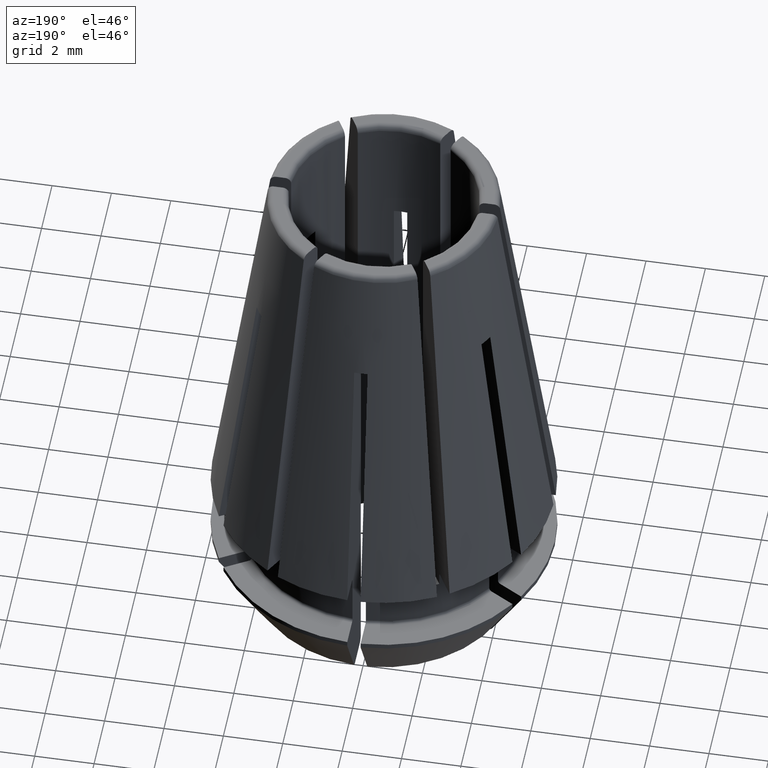
[diagram: clean part render]
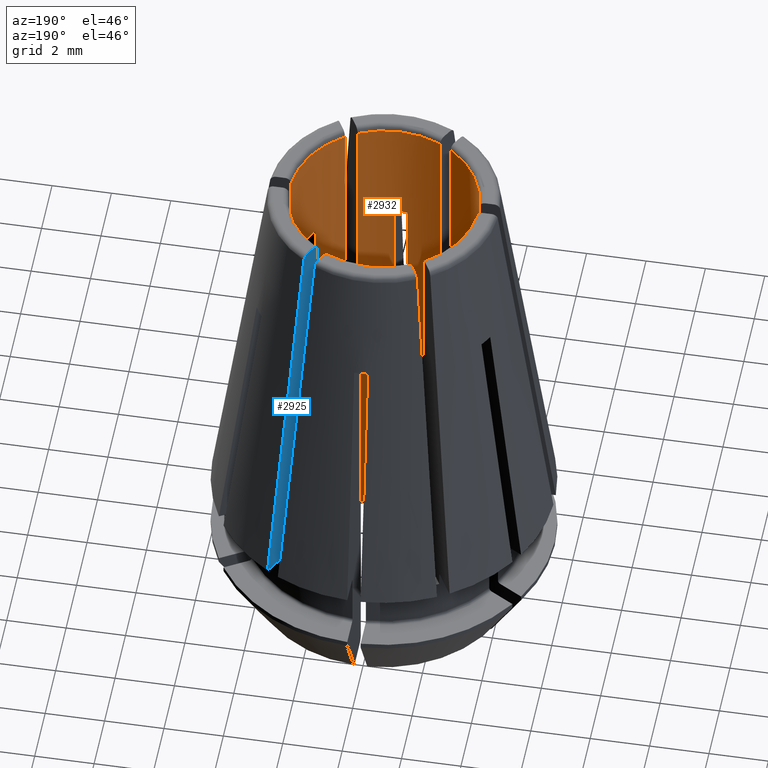
[diagram: same view with the hole feature highlighted: cylindrical wall and planar end face, labeled with their STEP entity ids]
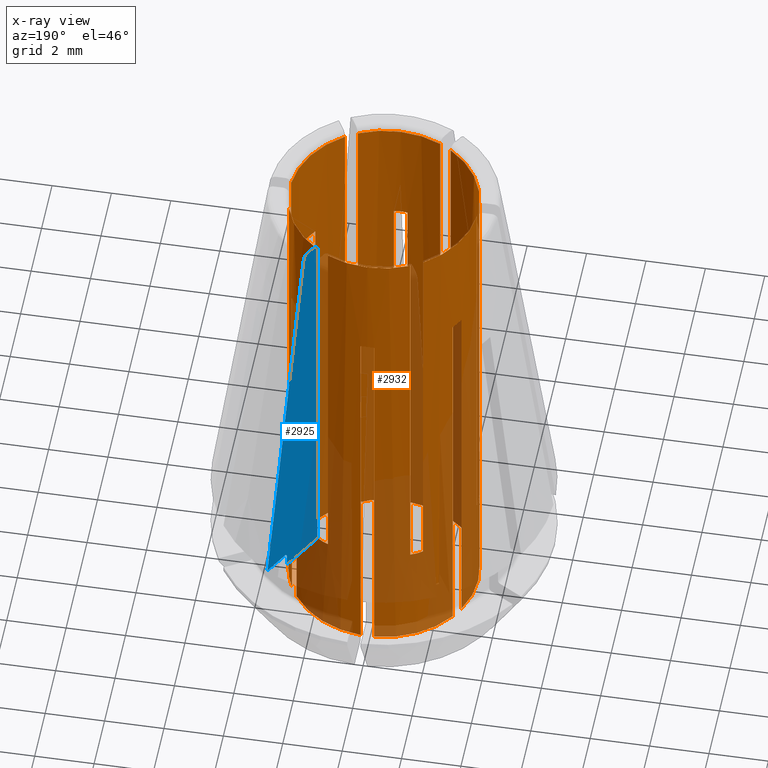
[diagram: x-ray of the same camera — body ghosted, the hole faces saturated]
A machine part, auxiliary view. The highlighted faces form one hole feature of diameter 6.35 mm: the cylindrical wall (entity #2932, orange) and its adjacent planar end face (entity #2925, blue) — they share a circular edge in the B-rep.
The next image is the same camera in x-ray (body ghosted, the hole faces saturated) — the bore reads through the body.
Wall:
#56=CYLINDRICAL_SURFACE('',#3256,3.175);
#84=LINE('',#4397,#252);
#99=LINE('',#4454,#267);
#109=LINE('',#4558,#277);
#120=LINE('',#4625,#288);
#131=LINE('',#4689,#299);
#143=LINE('',#4746,#311);
#170=LINE('',#4964,#338);
#191=LINE('',#5236,#359);
#192=LINE('',#5238,#360);
#195=LINE('',#5250,#363);
#196=LINE('',#5252,#364);
#224=LINE('',#5418,#392);
#225=LINE('',#5420,#393);
#226=LINE('',#5422,#394);
#227=LINE('',#5424,#395);
#228=LINE('',#5426,#396);
#229=LINE('',#5428,#397);
#230=LINE('',#5440,#398);
#231=LINE('',#5442,#399);
#232=LINE('',#5455,#400);
#233=LINE('',#5469,#401);
#234=LINE('',#5472,#402);
#235=LINE('',#5473,#403);
#236=LINE('',#5474,#404);
#252=VECTOR('',#3409,1000.);
#267=VECTOR('',#3450,1000.);
#277=VECTOR('',#3484,1000.);
#288=VECTOR('',#3521,1000.);
#299=VECTOR('',#3558,1000.);
#311=VECTOR('',#3596,1000.);
#338=VECTOR('',#3707,1000.);
#359=VECTOR('',#3844,1000.);
#360=VECTOR('',#3847,1000.);
#363=VECTOR('',#3854,1000.);
#364=VECTOR('',#3857,1000.);
#392=VECTOR('',#4003,1000.);
#393=VECTOR('',#4006,1000.);
#394=VECTOR('',#4009,1000.);
#395=VECTOR('',#4012,1000.);
#396=VECTOR('',#4015,1000.);
#397=VECTOR('',#4018,1000.);
#398=VECTOR('',#4023,1000.);
#399=VECTOR('',#4026,1000.);
#400=VECTOR('',#4029,1000.);
#401=VECTOR('',#4038,1000.);
#402=VECTOR('',#4041,1000.);
#403=VECTOR('',#4042,1000.);
#404=VECTOR('',#4043,1000.);
#473=CIRCLE('',#2959,3.175);
#477=CIRCLE('',#2965,3.175);
#482=CIRCLE('',#2973,3.175);
#485=CIRCLE('',#2978,3.175);
#488=CIRCLE('',#2983,3.175);
#492=CIRCLE('',#2989,3.175);
#495=CIRCLE('',#2994,3.175);
#503=CIRCLE('',#3005,3.175);
#506=CIRCLE('',#3010,3.175);
#544=CIRCLE('',#3088,3.175);
#549=CIRCLE('',#3096,3.175);
#625=CIRCLE('',#3257,3.175);
#1407=ORIENTED_EDGE('',*,*,#1631,.F.);
#1408=ORIENTED_EDGE('',*,*,#1543,.F.);
#1409=ORIENTED_EDGE('',*,*,#1982,.T.);
#1410=ORIENTED_EDGE('',*,*,#1651,.T.);
#1411=ORIENTED_EDGE('',*,*,#1649,.T.);
#1412=ORIENTED_EDGE('',*,*,#1986,.F.);
#1413=ORIENTED_EDGE('',*,*,#1562,.F.);
#1414=ORIENTED_EDGE('',*,*,#1899,.T.);
#1415=ORIENTED_EDGE('',*,*,#1675,.T.);
#1416=ORIENTED_EDGE('',*,*,#1673,.T.);
#1417=ORIENTED_EDGE('',*,*,#1900,.F.);
#1418=ORIENTED_EDGE('',*,*,#1576,.F.);
#1419=ORIENTED_EDGE('',*,*,#1971,.T.);
#1420=ORIENTED_EDGE('',*,*,#1699,.T.);
#1421=ORIENTED_EDGE('',*,*,#1697,.T.);
#1422=ORIENTED_EDGE('',*,*,#1972,.F.);
#1423=ORIENTED_EDGE('',*,*,#1591,.F.);
#1424=ORIENTED_EDGE('',*,*,#1969,.T.);
#1425=ORIENTED_EDGE('',*,*,#1722,.T.);
#1426=ORIENTED_EDGE('',*,*,#1720,.T.);
#1427=ORIENTED_EDGE('',*,*,#1970,.F.);
#1428=ORIENTED_EDGE('',*,*,#1614,.F.);
#1429=ORIENTED_EDGE('',*,*,#1974,.T.);
#1430=ORIENTED_EDGE('',*,*,#1742,.T.);
#1431=ORIENTED_EDGE('',*,*,#1739,.T.);
#1432=ORIENTED_EDGE('',*,*,#1978,.F.);
#1433=ORIENTED_EDGE('',*,*,#1987,.F.);
#1434=ORIENTED_EDGE('',*,*,#1988,.T.);
#1435=ORIENTED_EDGE('',*,*,#1813,.T.);
#1436=ORIENTED_EDGE('',*,*,#1811,.T.);
#1437=ORIENTED_EDGE('',*,*,#1989,.F.);
#1438=ORIENTED_EDGE('',*,*,#1985,.T.);
#1439=ORIENTED_EDGE('',*,*,#1983,.T.);
#1440=ORIENTED_EDGE('',*,*,#1818,.T.);
#1441=ORIENTED_EDGE('',*,*,#1764,.F.);
#1442=ORIENTED_EDGE('',*,*,#1748,.F.);
#1443=ORIENTED_EDGE('',*,*,#1759,.T.);
#1444=ORIENTED_EDGE('',*,*,#1757,.T.);
#1445=ORIENTED_EDGE('',*,*,#1979,.T.);
#1446=ORIENTED_EDGE('',*,*,#1773,.F.);
#1447=ORIENTED_EDGE('',*,*,#1973,.F.);
#1448=ORIENTED_EDGE('',*,*,#1734,.T.);
#1449=ORIENTED_EDGE('',*,*,#1731,.T.);
#1450=ORIENTED_EDGE('',*,*,#1726,.T.);
#1451=ORIENTED_EDGE('',*,*,#1608,.F.);
#1452=ORIENTED_EDGE('',*,*,#1893,.F.);
#1453=ORIENTED_EDGE('',*,*,#1711,.T.);
#1454=ORIENTED_EDGE('',*,*,#1708,.T.);
#1455=ORIENTED_EDGE('',*,*,#1703,.T.);
#1456=ORIENTED_EDGE('',*,*,#1585,.F.);
#1457=ORIENTED_EDGE('',*,*,#1894,.F.);
#1458=ORIENTED_EDGE('',*,*,#1690,.T.);
#1459=ORIENTED_EDGE('',*,*,#1688,.T.);
#1460=ORIENTED_EDGE('',*,*,#1680,.T.);
#1461=ORIENTED_EDGE('',*,*,#1570,.F.);
#1462=ORIENTED_EDGE('',*,*,#1655,.F.);
#1463=ORIENTED_EDGE('',*,*,#1666,.T.);
#1464=ORIENTED_EDGE('',*,*,#1665,.T.);
#1465=ORIENTED_EDGE('',*,*,#1990,.T.);
#1466=ORIENTED_EDGE('',*,*,#1552,.F.);
#1543=EDGE_CURVE('',#1999,#2000,#473,.T.);
#1552=EDGE_CURVE('',#2007,#2008,#477,.T.);
#1562=EDGE_CURVE('',#2017,#2018,#482,.T.);
#1570=EDGE_CURVE('',#2023,#2024,#485,.T.);
#1576=EDGE_CURVE('',#2029,#2030,#488,.T.);
#1585=EDGE_CURVE('',#2037,#2038,#492,.T.);
#1591=EDGE_CURVE('',#2043,#2044,#495,.T.);
#1608=EDGE_CURVE('',#2059,#2060,#503,.T.);
#1614=EDGE_CURVE('',#2065,#2066,#506,.T.);
#1631=EDGE_CURVE('',#2000,#2081,#84,.T.);
#1649=EDGE_CURVE('',#2093,#2096,#2332,.T.);
#1651=EDGE_CURVE('',#2097,#2093,#2333,.T.);
#1655=EDGE_CURVE('',#2101,#2023,#99,.T.);
#1665=EDGE_CURVE('',#2107,#2108,#2337,.T.);
#1666=EDGE_CURVE('',#2101,#2107,#2338,.T.);
#1673=EDGE_CURVE('',#2111,#2114,#2339,.T.);
#1675=EDGE_CURVE('',#2115,#2111,#2340,.T.);
#1680=EDGE_CURVE('',#2120,#2024,#109,.T.);
#1688=EDGE_CURVE('',#2123,#2120,#2344,.T.);
#1690=EDGE_CURVE('',#2126,#2123,#2345,.T.);
#1697=EDGE_CURVE('',#2129,#2132,#2346,.T.);
#1699=EDGE_CURVE('',#2133,#2129,#2347,.T.);
#1703=EDGE_CURVE('',#2136,#2038,#120,.T.);
#1708=EDGE_CURVE('',#2139,#2136,#2350,.T.);
#1711=EDGE_CURVE('',#2141,#2139,#2351,.T.);
#1720=EDGE_CURVE('',#2145,#2148,#2352,.T.);
#1722=EDGE_CURVE('',#2149,#2145,#2353,.T.);
#1726=EDGE_CURVE('',#2152,#2060,#131,.T.);
#1731=EDGE_CURVE('',#2155,#2152,#2356,.T.);
#1734=EDGE_CURVE('',#2157,#2155,#2357,.T.);
#1739=EDGE_CURVE('',#2160,#2161,#2358,.T.);
#1742=EDGE_CURVE('',#2162,#2160,#2359,.T.);
#1748=EDGE_CURVE('',#2167,#2168,#143,.T.);
#1757=EDGE_CURVE('',#2174,#2176,#2364,.T.);
#1759=EDGE_CURVE('',#2167,#2174,#2365,.T.);
#1764=EDGE_CURVE('',#2168,#2179,#544,.T.);
#1773=EDGE_CURVE('',#2187,#2188,#549,.T.);
#1811=EDGE_CURVE('',#2083,#2081,#2373,.T.);
#1813=EDGE_CURVE('',#2214,#2083,#2374,.T.);
#1818=EDGE_CURVE('',#2218,#2179,#170,.T.);
#1893=EDGE_CURVE('',#2141,#2059,#191,.T.);
#1894=EDGE_CURVE('',#2126,#2037,#192,.T.);
#1899=EDGE_CURVE('',#2017,#2115,#195,.T.);
#1900=EDGE_CURVE('',#2030,#2114,#196,.T.);
#1969=EDGE_CURVE('',#2043,#2149,#224,.T.);
#1970=EDGE_CURVE('',#2066,#2148,#225,.T.);
#1971=EDGE_CURVE('',#2029,#2133,#226,.T.);
#1972=EDGE_CURVE('',#2044,#2132,#227,.T.);
#1973=EDGE_CURVE('',#2157,#2187,#228,.T.);
#1974=EDGE_CURVE('',#2065,#2162,#229,.T.);
#1978=EDGE_CURVE('',#2292,#2161,#230,.T.);
#1979=EDGE_CURVE('',#2176,#2188,#231,.T.);
#1982=EDGE_CURVE('',#1999,#2097,#232,.T.);
#1983=EDGE_CURVE('',#2088,#2218,#2422,.T.);
#1985=EDGE_CURVE('',#2293,#2088,#2423,.T.);
#1986=EDGE_CURVE('',#2018,#2096,#233,.T.);
#1987=EDGE_CURVE('',#2294,#2292,#625,.T.);
#1988=EDGE_CURVE('',#2294,#2214,#234,.T.);
#1989=EDGE_CURVE('',#2293,#2007,#235,.T.);
#1990=EDGE_CURVE('',#2108,#2008,#236,.T.);
#1999=VERTEX_POINT('',#4082);
#2000=VERTEX_POINT('',#4083);
#2007=VERTEX_POINT('',#4109);
#2008=VERTEX_POINT('',#4111);
#2017=VERTEX_POINT('',#4142);
#2018=VERTEX_POINT('',#4143);
#2023=VERTEX_POINT('',#4166);
#2024=VERTEX_POINT('',#4168);
#2029=VERTEX_POINT('',#4190);
#2030=VERTEX_POINT('',#4191);
#2037=VERTEX_POINT('',#4217);
#2038=VERTEX_POINT('',#4219);
#2043=VERTEX_POINT('',#4241);
#2044=VERTEX_POINT('',#4242);
#2059=VERTEX_POINT('',#4315);
#2060=VERTEX_POINT('',#4317);
#2065=VERTEX_POINT('',#4339);
#2066=VERTEX_POINT('',#4340);
#2081=VERTEX_POINT('',#4398);
#2083=VERTEX_POINT('',#4404);
#2088=VERTEX_POINT('',#4415);
#2093=VERTEX_POINT('',#4426);
#2096=VERTEX_POINT('',#4434);
#2097=VERTEX_POINT('',#4441);
#2101=VERTEX_POINT('',#4453);
#2107=VERTEX_POINT('',#4479);
#2108=VERTEX_POINT('',#4484);
#2111=VERTEX_POINT('',#4499);
#2114=VERTEX_POINT('',#4507);
#2115=VERTEX_POINT('',#4514);
#2120=VERTEX_POINT('',#4559);
#2123=VERTEX_POINT('',#4567);
#2126=VERTEX_POINT('',#4580);
#2129=VERTEX_POINT('',#4590);
#2132=VERTEX_POINT('',#4598);
#2133=VERTEX_POINT('',#4605);
#2136=VERTEX_POINT('',#4626);
#2139=VERTEX_POINT('',#4634);
#2141=VERTEX_POINT('',#4642);
#2145=VERTEX_POINT('',#4657);
#2148=VERTEX_POINT('',#4665);
#2149=VERTEX_POINT('',#4672);
#2152=VERTEX_POINT('',#4690);
#2155=VERTEX_POINT('',#4698);
#2157=VERTEX_POINT('',#4706);
#2160=VERTEX_POINT('',#4719);
#2161=VERTEX_POINT('',#4721);
#2162=VERTEX_POINT('',#4728);
#2167=VERTEX_POINT('',#4745);
#2168=VERTEX_POINT('',#4747);
#2174=VERTEX_POINT('',#4779);
#2176=VERTEX_POINT('',#4782);
#2179=VERTEX_POINT('',#4803);
#2187=VERTEX_POINT('',#4827);
#2188=VERTEX_POINT('',#4829);
#2214=VERTEX_POINT('',#4939);
#2218=VERTEX_POINT('',#4965);
#2292=VERTEX_POINT('',#5439);
#2293=VERTEX_POINT('',#5463);
#2294=VERTEX_POINT('',#5471);
#2332=B_SPLINE_CURVE_WITH_KNOTS('',3,(#4435,#4436,#4437,#4438),
 .UNSPECIFIED.,.F.,.F.,(4,4),(0.000225,0.000449999999999999),
 .UNSPECIFIED.);
#2333=B_SPLINE_CURVE_WITH_KNOTS('',3,(#4442,#4443,#4444,#4445),
 .UNSPECIFIED.,.F.,.F.,(4,4),(9.69739903612216E-19,0.000225),
 .UNSPECIFIED.);
#2337=B_SPLINE_CURVE_WITH_KNOTS('',3,(#4485,#4486,#4487,#4488),
 .UNSPECIFIED.,.F.,.F.,(4,4),(0.000224999999999997,0.000449999999999999),
 .UNSPECIFIED.);
#2338=B_SPLINE_CURVE_WITH_KNOTS('',3,(#4490,#4491,#4492,#4493),
 .UNSPECIFIED.,.F.,.F.,(4,4),(1.93947980722443E-18,0.000224999999999997),
 .UNSPECIFIED.);
#2339=B_SPLINE_CURVE_WITH_KNOTS('',3,(#4508,#4509,#4510,#4511),
 .UNSPECIFIED.,.F.,.F.,(4,4),(0.000225000000000008,0.000450000000000001),
 .UNSPECIFIED.);
#2340=B_SPLINE_CURVE_WITH_KNOTS('',3,(#4515,#4516,#4517,#4518),
 .UNSPECIFIED.,.F.,.F.,(4,4),(0.,0.000225000000000008),.UNSPECIFIED.);
#2344=B_SPLINE_CURVE_WITH_KNOTS('',3,(#4574,#4575,#4576,#4577),
 .UNSPECIFIED.,.F.,.F.,(4,4),(0.000225,0.00045),.UNSPECIFIED.);
#2345=B_SPLINE_CURVE_WITH_KNOTS('',3,(#4581,#4582,#4583,#4584),
 .UNSPECIFIED.,.F.,.F.,(4,4),(0.,0.000225),.UNSPECIFIED.);
#2346=B_SPLINE_CURVE_WITH_KNOTS('',3,(#4599,#4600,#4601,#4602),
 .UNSPECIFIED.,.F.,.F.,(4,4),(0.000225000000000008,0.000449999999999998),
 .UNSPECIFIED.);
#2347=B_SPLINE_CURVE_WITH_KNOTS('',3,(#4606,#4607,#4608,#4609),
 .UNSPECIFIED.,.F.,.F.,(4,4),(0.,0.000225000000000008),.UNSPECIFIED.);
#2350=B_SPLINE_CURVE_WITH_KNOTS('',3,(#4635,#4636,#4637,#4638),
 .UNSPECIFIED.,.F.,.F.,(4,4),(0.000225000000000002,0.000450000000000001),
 .UNSPECIFIED.);
#2351=B_SPLINE_CURVE_WITH_KNOTS('',3,(#4644,#4645,#4646,#4647),
 .UNSPECIFIED.,.F.,.F.,(4,4),(0.,0.000225000000000002),.UNSPECIFIED.);
#2352=B_SPLINE_CURVE_WITH_KNOTS('',3,(#4666,#4667,#4668,#4669),
 .UNSPECIFIED.,.F.,.F.,(4,4),(0.000225000000000002,0.000449999999999998),
 .UNSPECIFIED.);
#2353=B_SPLINE_CURVE_WITH_KNOTS('',3,(#4673,#4674,#4675,#4676),
 .UNSPECIFIED.,.F.,.F.,(4,4),(2.5287722848199E-18,0.000225000000000002),
 .UNSPECIFIED.);
#2356=B_SPLINE_CURVE_WITH_KNOTS('',3,(#4699,#4700,#4701,#4702),
 .UNSPECIFIED.,.F.,.F.,(4,4),(0.000225000000000005,0.000450000000000001),
 .UNSPECIFIED.);
#2357=B_SPLINE_CURVE_WITH_KNOTS('',3,(#4708,#4709,#4710,#4711),
 .UNSPECIFIED.,.F.,.F.,(4,4),(0.,0.000225000000000005),.UNSPECIFIED.);
#2358=B_SPLINE_CURVE_WITH_KNOTS('',3,(#4722,#4723,#4724,#4725),
 .UNSPECIFIED.,.F.,.F.,(4,4),(0.000225,0.00045),.UNSPECIFIED.);
#2359=B_SPLINE_CURVE_WITH_KNOTS('',3,(#4731,#4732,#4733,#4734),
 .UNSPECIFIED.,.F.,.F.,(4,4),(0.,0.000225),.UNSPECIFIED.);
#2364=B_SPLINE_CURVE_WITH_KNOTS('',3,(#4783,#4784,#4785,#4786),
 .UNSPECIFIED.,.F.,.F.,(4,4),(0.000225,0.00045),.UNSPECIFIED.);
#2365=B_SPLINE_CURVE_WITH_KNOTS('',3,(#4789,#4790,#4791,#4792),
 .UNSPECIFIED.,.F.,.F.,(4,4),(0.,0.000225),.UNSPECIFIED.);
#2373=B_SPLINE_CURVE_WITH_KNOTS('',3,(#4933,#4934,#4935,#4936),
 .UNSPECIFIED.,.F.,.F.,(4,4),(0.000225000000000006,0.000450000000000001),
 .UNSPECIFIED.);
#2374=B_SPLINE_CURVE_WITH_KNOTS('',3,(#4940,#4941,#4942,#4943),
 .UNSPECIFIED.,.F.,.F.,(4,4),(2.5287722848199E-18,0.000225000000000006),
 .UNSPECIFIED.);
#2422=B_SPLINE_CURVE_WITH_KNOTS('',3,(#5457,#5458,#5459,#5460),
 .UNSPECIFIED.,.F.,.F.,(4,4),(0.000225000000000001,0.00045),
 .UNSPECIFIED.);
#2423=B_SPLINE_CURVE_WITH_KNOTS('',3,(#5464,#5465,#5466,#5467),
 .UNSPECIFIED.,.F.,.F.,(4,4),(7.81829305173188E-19,0.000225000000000001),
 .UNSPECIFIED.);
#2574=EDGE_LOOP('',(#1407,#1408,#1409,#1410,#1411,#1412,#1413,#1414,#1415,
#1416,#1417,#1418,#1419,#1420,#1421,#1422,#1423,#1424,#1425,#1426,#1427,
#1428,#1429,#1430,#1431,#1432,#1433,#1434,#1435,#1436));
#2575=EDGE_LOOP('',(#1437,#1438,#1439,#1440,#1441,#1442,#1443,#1444,#1445,
#1446,#1447,#1448,#1449,#1450,#1451,#1452,#1453,#1454,#1455,#1456,#1457,
#1458,#1459,#1460,#1461,#1462,#1463,#1464,#1465,#1466));
#2732=FACE_BOUND('',#2574,.T.);
#2733=FACE_BOUND('',#2575,.T.);
#2932=ADVANCED_FACE('',(#2732,#2733),#56,.F.);
#2959=AXIS2_PLACEMENT_3D('',#4081,#3278,#3279);
#2965=AXIS2_PLACEMENT_3D('',#4110,#3292,#3293);
#2973=AXIS2_PLACEMENT_3D('',#4141,#3310,#3311);
#2978=AXIS2_PLACEMENT_3D('',#4167,#3322,#3323);
#2983=AXIS2_PLACEMENT_3D('',#4189,#3332,#3333);
#2989=AXIS2_PLACEMENT_3D('',#4218,#3346,#3347);
#2994=AXIS2_PLACEMENT_3D('',#4240,#3356,#3357);
#3005=AXIS2_PLACEMENT_3D('',#4316,#3380,#3381);
#3010=AXIS2_PLACEMENT_3D('',#4338,#3390,#3391);
#3088=AXIS2_PLACEMENT_3D('',#4805,#3616,#3617);
#3096=AXIS2_PLACEMENT_3D('',#4828,#3635,#3636);
#3256=AXIS2_PLACEMENT_3D('',#5468,#4036,#4037);
#3257=AXIS2_PLACEMENT_3D('',#5470,#4039,#4040);
#3278=DIRECTION('',(0.,0.,1.));
#3279=DIRECTION('',(1.,0.,0.));
#3292=DIRECTION('',(0.,0.,-1.));
#3293=DIRECTION('',(-1.,0.,0.));
#3310=DIRECTION('',(0.,0.,1.));
#3311=DIRECTION('',(1.,0.,0.));
#3322=DIRECTION('',(0.,0.,-1.));
#3323=DIRECTION('',(-1.,0.,0.));
#3332=DIRECTION('',(0.,0.,1.));
#3333=DIRECTION('',(1.,0.,0.));
#3346=DIRECTION('',(0.,0.,-1.));
#3347=DIRECTION('',(-1.,0.,0.));
#3356=DIRECTION('',(0.,0.,1.));
#3357=DIRECTION('',(1.,0.,0.));
#3380=DIRECTION('',(0.,0.,-1.));
#3381=DIRECTION('',(-1.,0.,0.));
#3390=DIRECTION('',(0.,0.,1.));
#3391=DIRECTION('',(1.,0.,0.));
#3409=DIRECTION('',(0.,0.,1.));
#3450=DIRECTION('',(0.,0.,1.));
#3484=DIRECTION('',(0.,0.,1.));
#3521=DIRECTION('',(0.,0.,1.));
#3558=DIRECTION('',(0.,0.,1.));
#3596=DIRECTION('',(0.,0.,1.));
#3616=DIRECTION('',(0.,0.,-1.));
#3617=DIRECTION('',(-1.,0.,0.));
#3635=DIRECTION('',(0.,0.,-1.));
#3636=DIRECTION('',(-1.,0.,0.));
#3707=DIRECTION('',(0.,0.,1.));
#3844=DIRECTION('',(0.,0.,1.));
#3847=DIRECTION('',(0.,0.,1.));
#3854=DIRECTION('',(0.,0.,1.));
#3857=DIRECTION('',(0.,0.,1.));
#4003=DIRECTION('',(0.,0.,1.));
#4006=DIRECTION('',(0.,0.,1.));
#4009=DIRECTION('',(0.,0.,1.));
#4012=DIRECTION('',(0.,0.,1.));
#4015=DIRECTION('',(0.,0.,1.));
#4018=DIRECTION('',(0.,0.,1.));
#4023=DIRECTION('',(0.,0.,1.));
#4026=DIRECTION('',(0.,0.,1.));
#4029=DIRECTION('',(0.,0.,1.));
#4036=DIRECTION('',(0.,0.,-1.));
#4037=DIRECTION('',(1.,0.,0.));
#4038=DIRECTION('',(0.,0.,1.));
#4039=DIRECTION('',(0.,0.,1.));
#4040=DIRECTION('',(1.,0.,0.));
#4041=DIRECTION('',(0.,0.,1.));
#4042=DIRECTION('',(0.,0.,1.));
#4043=DIRECTION('',(0.,0.,1.));
#4081=CARTESIAN_POINT('',(0.,0.,-4.3));
#4082=CARTESIAN_POINT('',(2.8552176303805,-1.3886530463598,-4.3));
#4083=CARTESIAN_POINT('',(2.8552176303805,1.38865304635981,-4.3));
#4109=CARTESIAN_POINT('',(1.3886530463596,-2.85521763038014,13.3000000000001));
#4110=CARTESIAN_POINT('',(0.,0.,13.3));
#4111=CARTESIAN_POINT('',(-1.3886530463598,-2.8552176303805,13.3));
#4141=CARTESIAN_POINT('',(0.,0.,-4.3));
#4142=CARTESIAN_POINT('',(0.225000000000008,-3.16701752442262,-4.3));
#4143=CARTESIAN_POINT('',(2.6302176303805,-1.7783644780628,-4.3));
#4166=CARTESIAN_POINT('',(-1.77836447806258,-2.63021763038015,13.3000000000001));
#4167=CARTESIAN_POINT('',(0.,0.,13.3));
#4168=CARTESIAN_POINT('',(-3.16701752442221,-0.224999999999997,13.3000000000001));
#4189=CARTESIAN_POINT('',(0.,0.,-4.3));
#4190=CARTESIAN_POINT('',(-2.6302176303805,-1.7783644780628,-4.3));
#4191=CARTESIAN_POINT('',(-0.224999999999992,-3.16701752442262,-4.3));
#4217=CARTESIAN_POINT('',(-3.16701752442221,0.225000000000003,13.3000000000001));
#4218=CARTESIAN_POINT('',(0.,0.,13.3));
#4219=CARTESIAN_POINT('',(-1.77836447806258,2.63021763038015,13.3000000000001));
#4240=CARTESIAN_POINT('',(0.,0.,-4.3));
#4241=CARTESIAN_POINT('',(-2.8552176303805,1.38865304635981,-4.3));
#4242=CARTESIAN_POINT('',(-2.8552176303805,-1.38865304635981,-4.3));
#4315=CARTESIAN_POINT('',(-1.38865304635959,2.85521763038015,13.3000000000001));
#4316=CARTESIAN_POINT('',(0.,0.,13.3));
#4317=CARTESIAN_POINT('',(1.3886530463596,2.85521763038014,13.3000000000001));
#4338=CARTESIAN_POINT('',(0.,0.,-4.3));
#4339=CARTESIAN_POINT('',(-0.225,3.16701752442262,-4.3));
#4340=CARTESIAN_POINT('',(-2.63021763038049,1.77836447806281,-4.3));
#4397=CARTESIAN_POINT('',(2.8552176303805,1.38865304635981,60.));
#4398=CARTESIAN_POINT('',(2.8552176303805,1.38865304635981,9.49105362531695));
#4404=CARTESIAN_POINT('',(2.7496306570156,1.5875,9.5));
#4415=CARTESIAN_POINT('',(1.5875,-2.74963065701559,-0.5));
#4426=CARTESIAN_POINT('',(2.7496306570156,-1.5875,9.5));
#4434=CARTESIAN_POINT('',(2.63021763038049,-1.77836447806281,9.49105362531695));
#4435=CARTESIAN_POINT('',(2.74963065701559,-1.5875,9.50000000000026));
#4436=CARTESIAN_POINT('',(2.71213065701559,-1.65245190528383,9.50000000000026));
#4437=CARTESIAN_POINT('',(2.67233212290419,-1.7160767512797,9.49702827499802));
#4438=CARTESIAN_POINT('',(2.63021763038049,-1.77836447806281,9.49105362531694));
#4441=CARTESIAN_POINT('',(2.8552176303805,-1.38865304635981,9.49105362531695));
#4442=CARTESIAN_POINT('',(2.85521763038049,-1.38865304635981,9.49105362531693));
#4443=CARTESIAN_POINT('',(2.82233212290419,-1.45626913014437,9.49702827499802));
#4444=CARTESIAN_POINT('',(2.78713065701559,-1.52254809471616,9.50000000000026));
#4445=CARTESIAN_POINT('',(2.74963065701559,-1.5875,9.50000000000026));
#4453=CARTESIAN_POINT('',(-1.77836447806281,-2.63021763038049,-0.48570068475687));
#4454=CARTESIAN_POINT('',(-1.77836447806281,-2.63021763038049,60.));
#4479=CARTESIAN_POINT('',(-1.5875,-2.74963065701558,-0.5));
#4484=CARTESIAN_POINT('',(-1.38865304635981,-2.85521763038049,-0.48570068475687));
#4485=CARTESIAN_POINT('',(-1.5875,-2.74963065701559,-0.500000000000026));
#4486=CARTESIAN_POINT('',(-1.52254809471617,-2.78713065701559,-0.500000000000026));
#4487=CARTESIAN_POINT('',(-1.45626913014438,-2.82233212290419,-0.495252925073164));
#4488=CARTESIAN_POINT('',(-1.38865304635981,-2.8552176303805,-0.485700684756869));
#4490=CARTESIAN_POINT('',(-1.77836447806281,-2.63021763038049,-0.485700684756859));
#4491=CARTESIAN_POINT('',(-1.7160767512797,-2.67233212290418,-0.495252925073153));
#4492=CARTESIAN_POINT('',(-1.65245190528383,-2.71213065701559,-0.500000000000026));
#4493=CARTESIAN_POINT('',(-1.5875,-2.74963065701559,-0.500000000000026));
#4499=CARTESIAN_POINT('',(3.79470760369927E-16,-3.175,9.5));
#4507=CARTESIAN_POINT('',(-0.224999999999992,-3.16701752442262,9.49105362531696));
#4508=CARTESIAN_POINT('',(4.06575814682064E-16,-3.175,9.50000000000029));
#4509=CARTESIAN_POINT('',(-0.0749999999999972,-3.175,9.50000000000029));
#4510=CARTESIAN_POINT('',(-0.149999999999995,-3.17234588142408,9.49702827499804));
#4511=CARTESIAN_POINT('',(-0.224999999999993,-3.16701752442262,9.49105362531695));
#4514=CARTESIAN_POINT('',(0.225000000000008,-3.16701752442262,9.49105362531695));
#4515=CARTESIAN_POINT('',(0.225000000000008,-3.16701752442262,9.49105362531695));
#4516=CARTESIAN_POINT('',(0.150000000000005,-3.17234588142408,9.49702827499804));
#4517=CARTESIAN_POINT('',(0.0750000000000029,-3.175,9.50000000000029));
#4518=CARTESIAN_POINT('',(4.06575814682064E-16,-3.175,9.50000000000029));
#4558=CARTESIAN_POINT('',(-3.16701752442262,-0.225,60.));
#4559=CARTESIAN_POINT('',(-3.16701752442262,-0.225,-0.485700684756884));
#4567=CARTESIAN_POINT('',(-3.175,-3.79470760369927E-16,-0.5));
#4574=CARTESIAN_POINT('',(-3.175,-3.79220752594055E-16,-0.500000000000008));
#4575=CARTESIAN_POINT('',(-3.175,-0.0750000000000003,-0.500000000000008));
#4576=CARTESIAN_POINT('',(-3.17234588142408,-0.15,-0.495252925073173));
#4577=CARTESIAN_POINT('',(-3.16701752442262,-0.225,-0.485700684756878));
#4580=CARTESIAN_POINT('',(-3.16701752442262,0.225,-0.485700684756884));
#4581=CARTESIAN_POINT('',(-3.16701752442262,0.225,-0.485700684756884));
#4582=CARTESIAN_POINT('',(-3.17234588142408,0.15,-0.495252925073179));
#4583=CARTESIAN_POINT('',(-3.175,0.0749999999999997,-0.500000000000008));
#4584=CARTESIAN_POINT('',(-3.175,-3.79220752594055E-16,-0.500000000000008));
#4590=CARTESIAN_POINT('',(-2.7496306570156,-1.5875,9.5));
#4598=CARTESIAN_POINT('',(-2.85521763038049,-1.38865304635982,9.49105362531696));
#4599=CARTESIAN_POINT('',(-2.74963065701559,-1.5875,9.50000000000031));
#4600=CARTESIAN_POINT('',(-2.78713065701559,-1.52254809471617,9.50000000000031));
#4601=CARTESIAN_POINT('',(-2.82233212290419,-1.45626913014438,9.49702827499805));
#4602=CARTESIAN_POINT('',(-2.8552176303805,-1.38865304635982,9.49105362531696));
#4605=CARTESIAN_POINT('',(-2.63021763038049,-1.77836447806281,9.49105362531696));
#4606=CARTESIAN_POINT('',(-2.63021763038049,-1.77836447806281,9.49105362531696));
#4607=CARTESIAN_POINT('',(-2.67233212290419,-1.71607675127971,9.49702827499805));
#4608=CARTESIAN_POINT('',(-2.71213065701559,-1.65245190528383,9.50000000000031));
#4609=CARTESIAN_POINT('',(-2.74963065701559,-1.5875,9.50000000000031));
#4625=CARTESIAN_POINT('',(-1.77836447806281,2.63021763038049,60.));
#4626=CARTESIAN_POINT('',(-1.77836447806281,2.63021763038049,-0.485700684756884));
#4634=CARTESIAN_POINT('',(-1.5875,2.74963065701559,-0.5));
#4635=CARTESIAN_POINT('',(-1.5875,2.74963065701559,-0.500000000000037));
#4636=CARTESIAN_POINT('',(-1.65245190528383,2.71213065701559,-0.500000000000037));
#4637=CARTESIAN_POINT('',(-1.71607675127971,2.67233212290419,-0.495252925073179));
#4638=CARTESIAN_POINT('',(-1.77836447806281,2.63021763038049,-0.485700684756885));
#4642=CARTESIAN_POINT('',(-1.38865304635981,2.8552176303805,-0.485700684756884));
#4644=CARTESIAN_POINT('',(-1.38865304635981,2.8552176303805,-0.485700684756884));
#4645=CARTESIAN_POINT('',(-1.45626913014437,2.82233212290419,-0.495252925073179));
#4646=CARTESIAN_POINT('',(-1.52254809471617,2.78713065701559,-0.500000000000037));
#4647=CARTESIAN_POINT('',(-1.5875,2.74963065701559,-0.500000000000037));
#4657=CARTESIAN_POINT('',(-2.74963065701559,1.5875,9.5));
#4665=CARTESIAN_POINT('',(-2.6302176303805,1.77836447806281,9.49105362531696));
#4666=CARTESIAN_POINT('',(-2.74963065701559,1.5875,9.5000000000003));
#4667=CARTESIAN_POINT('',(-2.71213065701559,1.65245190528383,9.5000000000003));
#4668=CARTESIAN_POINT('',(-2.67233212290419,1.71607675127971,9.49702827499805));
#4669=CARTESIAN_POINT('',(-2.63021763038049,1.77836447806281,9.49105362531696));
#4672=CARTESIAN_POINT('',(-2.8552176303805,1.38865304635981,9.49105362531696));
#4673=CARTESIAN_POINT('',(-2.8552176303805,1.38865304635981,9.49105362531696));
#4674=CARTESIAN_POINT('',(-2.82233212290419,1.45626913014437,9.49702827499805));
#4675=CARTESIAN_POINT('',(-2.78713065701559,1.52254809471617,9.5000000000003));
#4676=CARTESIAN_POINT('',(-2.74963065701559,1.5875,9.5000000000003));
#4689=CARTESIAN_POINT('',(1.38865304635982,2.8552176303805,60.));
#4690=CARTESIAN_POINT('',(1.38865304635982,2.8552176303805,-0.48570068475687));
#4698=CARTESIAN_POINT('',(1.5875,2.7496306570156,-0.5));
#4699=CARTESIAN_POINT('',(1.5875,2.74963065701559,-0.500000000000031));
#4700=CARTESIAN_POINT('',(1.52254809471617,2.78713065701559,-0.500000000000031));
#4701=CARTESIAN_POINT('',(1.45626913014437,2.82233212290419,-0.495252925073158));
#4702=CARTESIAN_POINT('',(1.38865304635981,2.8552176303805,-0.485700684756864));
#4706=CARTESIAN_POINT('',(1.77836447806281,2.63021763038049,-0.48570068475687));
#4708=CARTESIAN_POINT('',(1.77836447806281,2.63021763038049,-0.48570068475687));
#4709=CARTESIAN_POINT('',(1.71607675127971,2.67233212290419,-0.495252925073165));
#4710=CARTESIAN_POINT('',(1.65245190528383,2.71213065701559,-0.500000000000031));
#4711=CARTESIAN_POINT('',(1.5875,2.74963065701559,-0.500000000000031));
#4719=CARTESIAN_POINT('',(0.,3.175,9.5));
#4721=CARTESIAN_POINT('',(0.225,3.16701752442262,9.49105362531696));
#4722=CARTESIAN_POINT('',(1.71911023224804E-17,3.175,9.50000000000029));
#4723=CARTESIAN_POINT('',(0.0750000000000001,3.175,9.50000000000029));
#4724=CARTESIAN_POINT('',(0.15,3.17234588142408,9.49702827499804));
#4725=CARTESIAN_POINT('',(0.225,3.16701752442262,9.49105362531695));
#4728=CARTESIAN_POINT('',(-0.225,3.16701752442262,9.49105362531696));
#4731=CARTESIAN_POINT('',(-0.225,3.16701752442262,9.49105362531696));
#4732=CARTESIAN_POINT('',(-0.15,3.17234588142408,9.49702827499805));
#4733=CARTESIAN_POINT('',(-0.0749999999999999,3.175,9.50000000000029));
#4734=CARTESIAN_POINT('',(1.71911023224804E-17,3.175,9.50000000000029));
#4745=CARTESIAN_POINT('',(3.16701752442262,-0.225,-0.48570068475687));
#4746=CARTESIAN_POINT('',(3.16701752442262,-0.225,60.));
#4747=CARTESIAN_POINT('',(3.16701752442262,-0.225,13.2999999999984));
#4779=CARTESIAN_POINT('',(3.175,0.,-0.5));
#4782=CARTESIAN_POINT('',(3.16701752442262,0.225,-0.48570068475687));
#4783=CARTESIAN_POINT('',(3.175,2.68550465364552E-17,-0.500000000000008));
#4784=CARTESIAN_POINT('',(3.175,0.0750000000000001,-0.500000000000008));
#4785=CARTESIAN_POINT('',(3.17234588142408,0.15,-0.495252925073159));
#4786=CARTESIAN_POINT('',(3.16701752442262,0.225,-0.485700684756864));
#4789=CARTESIAN_POINT('',(3.16701752442262,-0.225,-0.48570068475687));
#4790=CARTESIAN_POINT('',(3.17234588142408,-0.15,-0.495252925073165));
#4791=CARTESIAN_POINT('',(3.175,-0.0749999999999999,-0.500000000000008));
#4792=CARTESIAN_POINT('',(3.175,2.68550465364552E-17,-0.500000000000008));
#4803=CARTESIAN_POINT('',(1.77836447806259,-2.63021763038014,13.3000000000001));
#4805=CARTESIAN_POINT('',(0.,0.,13.3));
#4827=CARTESIAN_POINT('',(1.77836447806259,2.63021763038014,13.3000000000001));
#4828=CARTESIAN_POINT('',(0.,0.,13.3));
#4829=CARTESIAN_POINT('',(3.16701752442262,0.225,13.2999999999984));
#4933=CARTESIAN_POINT('',(2.74963065701559,1.5875,9.50000000000026));
#4934=CARTESIAN_POINT('',(2.78713065701559,1.52254809471617,9.50000000000026));
#4935=CARTESIAN_POINT('',(2.82233212290419,1.45626913014437,9.49702827499804));
#4936=CARTESIAN_POINT('',(2.8552176303805,1.38865304635981,9.49105362531695));
#4939=CARTESIAN_POINT('',(2.63021763038049,1.77836447806281,9.49105362531695));
#4940=CARTESIAN_POINT('',(2.63021763038049,1.77836447806281,9.49105362531695));
#4941=CARTESIAN_POINT('',(2.67233212290419,1.71607675127971,9.49702827499804));
#4942=CARTESIAN_POINT('',(2.71213065701559,1.65245190528383,9.50000000000026));
#4943=CARTESIAN_POINT('',(2.74963065701559,1.5875,9.50000000000026));
#4964=CARTESIAN_POINT('',(1.77836447806281,-2.63021763038049,60.));
#4965=CARTESIAN_POINT('',(1.77836447806281,-2.63021763038049,-0.485700684756877));
#5236=CARTESIAN_POINT('',(-1.38865304635981,2.8552176303805,60.));
#5238=CARTESIAN_POINT('',(-3.16701752442262,0.225,60.));
#5250=CARTESIAN_POINT('',(0.225000000000008,-3.16701752442262,60.));
#5252=CARTESIAN_POINT('',(-0.224999999999992,-3.16701752442262,60.));
#5418=CARTESIAN_POINT('',(-2.8552176303805,1.38865304635981,60.));
#5420=CARTESIAN_POINT('',(-2.63021763038049,1.77836447806281,60.));
#5422=CARTESIAN_POINT('',(-2.63021763038049,-1.77836447806281,60.));
#5424=CARTESIAN_POINT('',(-2.85521763038049,-1.38865304635982,60.));
#5426=CARTESIAN_POINT('',(1.77836447806281,2.63021763038049,60.));
#5428=CARTESIAN_POINT('',(-0.225,3.16701752442262,60.));
#5439=CARTESIAN_POINT('',(0.225,3.16701752442262,-4.3));
#5440=CARTESIAN_POINT('',(0.225,3.16701752442262,60.));
#5442=CARTESIAN_POINT('',(3.16701752442262,0.225,60.));
#5455=CARTESIAN_POINT('',(2.8552176303805,-1.38865304635981,60.));
#5457=CARTESIAN_POINT('',(1.5875,-2.74963065701559,-0.500000000000034));
#5458=CARTESIAN_POINT('',(1.65245190528383,-2.71213065701559,-0.500000000000034));
#5459=CARTESIAN_POINT('',(1.71607675127971,-2.67233212290419,-0.495252925073168));
#5460=CARTESIAN_POINT('',(1.77836447806281,-2.63021763038049,-0.485700684756873));
#5463=CARTESIAN_POINT('',(1.38865304635981,-2.8552176303805,-0.485700684756877));
#5464=CARTESIAN_POINT('',(1.38865304635981,-2.85521763038049,-0.485700684756866));
#5465=CARTESIAN_POINT('',(1.45626913014437,-2.82233212290419,-0.495252925073161));
#5466=CARTESIAN_POINT('',(1.52254809471617,-2.78713065701559,-0.500000000000034));
#5467=CARTESIAN_POINT('',(1.5875,-2.74963065701559,-0.500000000000034));
#5468=CARTESIAN_POINT('',(0.,0.,60.));
#5469=CARTESIAN_POINT('',(2.6302176303805,-1.77836447806281,60.));
#5470=CARTESIAN_POINT('',(0.,0.,-4.3));
#5471=CARTESIAN_POINT('',(2.63021763038049,1.77836447806281,-4.3));
#5472=CARTESIAN_POINT('',(2.63021763038049,1.77836447806281,60.));
#5473=CARTESIAN_POINT('',(1.38865304635981,-2.8552176303805,60.));
#5474=CARTESIAN_POINT('',(-1.38865304635981,-2.8552176303805,60.));
End face:
#136=LINE('',#4713,#304);
#152=LINE('',#4835,#320);
#156=LINE('',#4851,#324);
#172=LINE('',#4996,#340);
#228=LINE('',#5426,#396);
#304=VECTOR('',#3573,1000.);
#320=VECTOR('',#3639,1000.);
#324=VECTOR('',#3653,1000.);
#340=VECTOR('',#3723,1000.);
#396=VECTOR('',#4015,1000.);
#462=PLANE('',#3247);
#536=CIRCLE('',#3071,25.);
#1339=ORIENTED_EDGE('',*,*,#1783,.F.);
#1340=ORIENTED_EDGE('',*,*,#1735,.T.);
#1341=ORIENTED_EDGE('',*,*,#1732,.T.);
#1342=ORIENTED_EDGE('',*,*,#1973,.T.);
#1343=ORIENTED_EDGE('',*,*,#1772,.F.);
#1344=ORIENTED_EDGE('',*,*,#1775,.T.);
#1345=ORIENTED_EDGE('',*,*,#1823,.T.);
#1346=ORIENTED_EDGE('',*,*,#1839,.T.);
#1347=ORIENTED_EDGE('',*,*,#1828,.T.);
#1348=ORIENTED_EDGE('',*,*,#1822,.T.);
#1732=EDGE_CURVE('',#2156,#2157,#536,.T.);
#1735=EDGE_CURVE('',#2158,#2156,#136,.T.);
#1772=EDGE_CURVE('',#2185,#2187,#2367,.T.);
#1775=EDGE_CURVE('',#2185,#2189,#152,.T.);
#1783=EDGE_CURVE('',#2158,#2192,#156,.T.);
#1822=EDGE_CURVE('',#2220,#2192,#2379,.T.);
#1823=EDGE_CURVE('',#2189,#2221,#2380,.T.);
#1828=EDGE_CURVE('',#2224,#2220,#172,.T.);
#1839=EDGE_CURVE('',#2221,#2224,#2385,.T.);
#1973=EDGE_CURVE('',#2157,#2187,#228,.T.);
#2156=VERTEX_POINT('',#4705);
#2157=VERTEX_POINT('',#4706);
#2158=VERTEX_POINT('',#4714);
#2185=VERTEX_POINT('',#4821);
#2187=VERTEX_POINT('',#4827);
#2189=VERTEX_POINT('',#4836);
#2192=VERTEX_POINT('',#4843);
#2220=VERTEX_POINT('',#4970);
#2221=VERTEX_POINT('',#4984);
#2224=VERTEX_POINT('',#4994);
#2367=B_SPLINE_CURVE_WITH_KNOTS('',3,(#4823,#4824,#4825,#4826),
 .UNSPECIFIED.,.F.,.F.,(4,4),(1.19100681988042E-16,0.000312798954914771),
 .UNSPECIFIED.);
#2379=B_SPLINE_CURVE_WITH_KNOTS('',3,(#4975,#4976,#4977,#4978),
 .UNSPECIFIED.,.F.,.F.,(4,4),(2.94090952789851E-18,0.000156301684380105),
 .UNSPECIFIED.);
#2380=B_SPLINE_CURVE_WITH_KNOTS('',3,(#4980,#4981,#4982,#4983),
 .UNSPECIFIED.,.F.,.F.,(4,4),(4.09133713542521E-18,0.00028501715443495),
 .UNSPECIFIED.);
#2385=B_SPLINE_CURVE_WITH_KNOTS('',3,(#5029,#5030,#5031,#5032,#5033,#5034,
#5035),.UNSPECIFIED.,.F.,.F.,(4,3,4),(2.01972124516081E-7,0.00680645793045884,
0.0134593135604364),.UNSPECIFIED.);
#2567=EDGE_LOOP('',(#1339,#1340,#1341,#1342,#1343,#1344,#1345,#1346,#1347,
#1348));
#2725=FACE_BOUND('',#2567,.T.);
#2925=ADVANCED_FACE('',(#2725),#462,.T.);
#3071=AXIS2_PLACEMENT_3D('',#4704,#3568,#3569);
#3247=AXIS2_PLACEMENT_3D('',#5425,#4013,#4014);
#3568=DIRECTION('',(-0.866025403784439,0.5,0.));
#3569=DIRECTION('',(0.,0.,-1.));
#3573=DIRECTION('',(-0.5,-0.866025403784439,0.));
#3639=DIRECTION('',(0.5,0.866025403784439,0.));
#3653=DIRECTION('',(0.,0.,1.));
#3723=DIRECTION('',(-0.5,-0.866025403784439,0.));
#4013=DIRECTION('',(-0.866025403784439,0.5,0.));
#4014=DIRECTION('',(0.5,0.866025403784439,0.));
#4015=DIRECTION('',(0.,0.,1.));
#4704=CARTESIAN_POINT('',(12.6948557158515,21.538135094611,11.6930051668979));
#4705=CARTESIAN_POINT('',(1.78235571585151,2.63713065701559,-0.5));
#4706=CARTESIAN_POINT('',(1.77836447806281,2.63021763038049,-0.48570068475687));
#4713=CARTESIAN_POINT('',(1.7823557158515,2.63713065701559,-0.5));
#4714=CARTESIAN_POINT('',(2.56718974587341,3.99650307252257,-0.5));
#4821=CARTESIAN_POINT('',(1.87860153989971,2.80383331428344,13.5));
#4823=CARTESIAN_POINT('',(1.87860153989964,2.80383331428334,13.5));
#4824=CARTESIAN_POINT('',(1.82571831455433,2.71223688111714,13.4999999999999));
#4825=CARTESIAN_POINT('',(1.77836447806244,2.63021763037987,13.4057733808628));
#4826=CARTESIAN_POINT('',(1.77836447806239,2.63021763037979,13.3000000000002));
#4827=CARTESIAN_POINT('',(1.77836447806259,2.63021763038014,13.3000000000001));
#4835=CARTESIAN_POINT('',(1.11456606184012,1.48048504749904,13.5));
#4836=CARTESIAN_POINT('',(2.03083290309376,3.06750576984101,13.5));
#4843=CARTESIAN_POINT('',(2.56718974587329,3.99650307252239,-9.99999999999525E-02));
#4851=CARTESIAN_POINT('',(2.56718974587341,3.99650307252257,60.));
#4970=CARTESIAN_POINT('',(2.61724477419864,4.0832009247562,-1.25560409272654E-28));
#4975=CARTESIAN_POINT('',(2.61724477419864,4.0832009247562,-2.5191163672585E-28));
#4976=CARTESIAN_POINT('',(2.59081957756819,4.03743114159226,-3.29874569938833E-15));
#4977=CARTESIAN_POINT('',(2.5671897458732,3.99650307252224,-4.71479777662801E-02));
#4978=CARTESIAN_POINT('',(2.56718974587317,3.9965030725222,-0.099999999999902));
#4980=CARTESIAN_POINT('',(2.03083290309376,3.06750576984101,13.5));
#4981=CARTESIAN_POINT('',(2.07901910026542,3.15096671156586,13.5));
#4982=CARTESIAN_POINT('',(2.12331826427537,3.22769511436393,13.4232708199153));
#4983=CARTESIAN_POINT('',(2.13003592859738,3.23933045027784,13.327834620192));
#4984=CARTESIAN_POINT('',(2.1300359285974,3.23933045027782,13.327834620192));
#4994=CARTESIAN_POINT('',(3.0676537856782,4.86333221682564,-3.34970795354269E-17));
#4996=CARTESIAN_POINT('',(1.57483729549045,2.27769820944382,1.0842021724855E-16));
#5029=CARTESIAN_POINT('',(2.1300359285974,3.23933045027782,13.327834620192));
#5030=CARTESIAN_POINT('',(2.28817192716576,3.51323003430387,11.0812355018997));
#5031=CARTESIAN_POINT('',(2.44624638924087,3.78702303399709,8.83461905702039));
#5032=CARTESIAN_POINT('',(2.60428967405201,4.06076203308506,6.58799384239535));
#5033=CARTESIAN_POINT('',(2.75877095773794,4.32833146524755,4.39200337351099));
#5034=CARTESIAN_POINT('',(2.91322137466782,4.59584743462029,2.19600421884523));
#5035=CARTESIAN_POINT('',(3.06765378567821,4.86333221682564,2.43014580913901E-16));
#5425=CARTESIAN_POINT('',(12.6948557158515,21.538135094611,11.6930051668979));
#5426=CARTESIAN_POINT('',(1.77836447806281,2.63021763038049,60.));